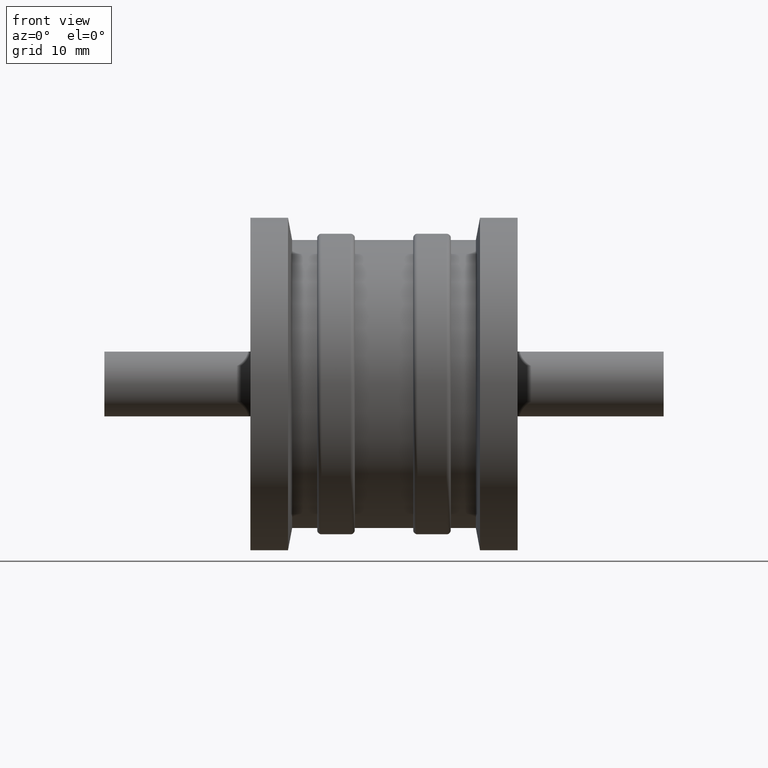
[diagram: clean part render]
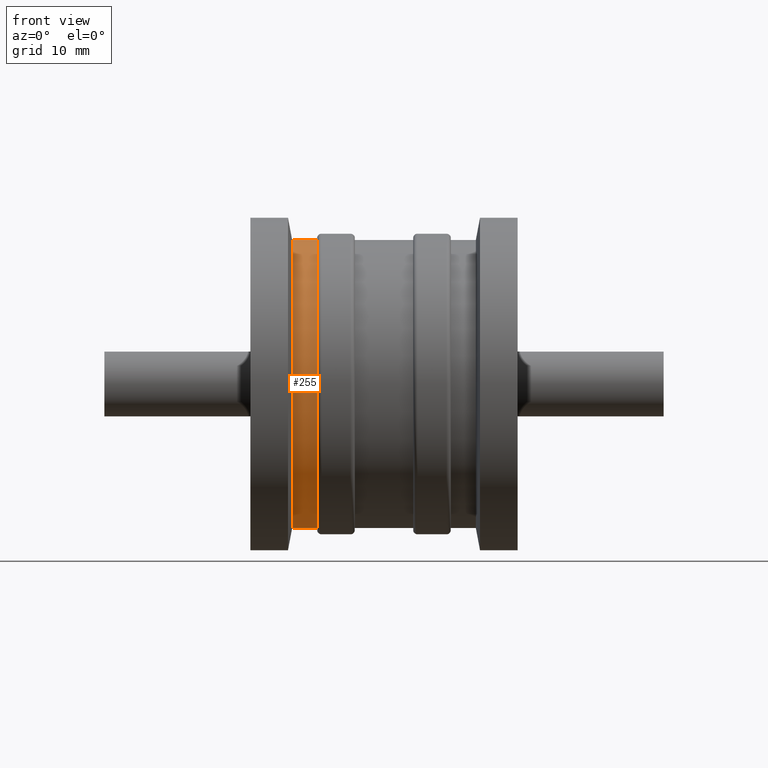
[diagram: same view with one face highlighted and labeled with its STEP entity id]
A machine part, front view. The second image highlights one B-rep face of the part: STEP entity #255.
In plain terms, the highlighted cylindrical surface (bore or boss wall) has radius 17.25 mm, axis along (1, 0, 0).
Its self-contained STEP definition (entity closure, byte-faithful):
#31=CYLINDRICAL_SURFACE('',#301,17.25);
#52=FACE_BOUND('',#116,.T.);
#74=FACE_OUTER_BOUND('',#115,.T.);
#115=EDGE_LOOP('',(#225));
#116=EDGE_LOOP('',(#226));
#131=CIRCLE('',#278,17.25);
#142=CIRCLE('',#300,17.25);
#153=VERTEX_POINT('',#425);
#164=VERTEX_POINT('',#458);
#175=EDGE_CURVE('',#153,#153,#131,.T.);
#186=EDGE_CURVE('',#164,#164,#142,.T.);
#225=ORIENTED_EDGE('',*,*,#186,.T.);
#226=ORIENTED_EDGE('',*,*,#175,.F.);
#255=ADVANCED_FACE('',(#74,#52),#31,.T.);
#278=AXIS2_PLACEMENT_3D('',#426,#342,#343);
#300=AXIS2_PLACEMENT_3D('',#459,#386,#387);
#301=AXIS2_PLACEMENT_3D('',#460,#388,#389);
#342=DIRECTION('center_axis',(1.,0.,0.));
#343=DIRECTION('ref_axis',(0.,0.,-1.));
#386=DIRECTION('center_axis',(1.,0.,0.));
#387=DIRECTION('ref_axis',(0.,0.,-1.));
#388=DIRECTION('center_axis',(1.,0.,0.));
#389=DIRECTION('ref_axis',(0.,1.,0.));
#425=CARTESIAN_POINT('',(-8.,17.25,0.));
#426=CARTESIAN_POINT('Origin',(-8.,0.,0.));
#458=CARTESIAN_POINT('',(-11.,17.25,0.));
#459=CARTESIAN_POINT('Origin',(-11.,0.,0.));
#460=CARTESIAN_POINT('Origin',(-9.5,0.,0.));